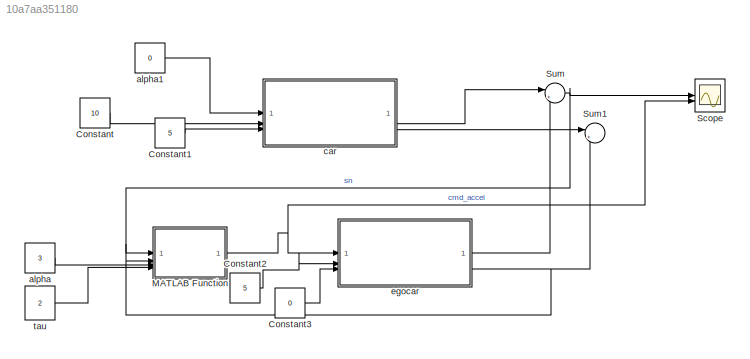
MODEL slx_10a7aa351180
KIND model
CONFIG AbsTol = auto
CONFIG EnableMultiTasking = off
CONFIG FixedStep = auto
CONFIG MaxStep = auto
CONFIG MinStep = auto
CONFIG RelTol = 1e-3
CONFIG SampleTimeConstraint = Unconstrained
CONFIG SolverName = VariableStepAuto
CONFIG StartTime = 0.0
CONFIG StopTime = 10.0
BLOCK [Constant] Constant
  Value = 10
BLOCK [Constant] Constant1
  Value = 5
BLOCK [Constant] Constant2
  Value = 5
BLOCK [Constant] Constant3
  Value = 0
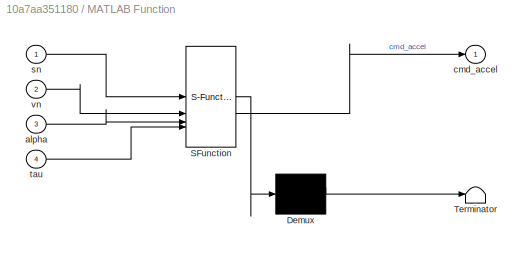
BLOCK [SubSystem] MATLAB Function
  ErrorFcn = Stateflow.Translate.translate
  PermitHierarchicalResolution = ExplicitOnly
  SFBlockType = MATLAB Function
  TreatAsAtomicUnit = on
BLOCK [Demux] MATLAB Function/ Demux 
  Outputs = 1
BLOCK [S-Function] MATLAB Function/ SFunction 
  EnableBusSupport = off
  FunctionName = sf_sfun
  PortCounts = [4 2]
  SFcnIsStateOwnerBlock = off
  SFunctionDeploymentMode = off
  Tag = Stateflow S-Function 2
BLOCK [Terminator] MATLAB Function/ Terminator 
BLOCK [Inport] MATLAB Function/alpha
  Port = 3
BLOCK [Outport] MATLAB Function/cmd_accel
BLOCK [Inport] MATLAB Function/sn
BLOCK [Inport] MATLAB Function/tau
  Port = 4
BLOCK [Inport] MATLAB Function/vn
  Port = 2
BLOCK [Scope] Scope
  ActiveDisplayYMaximum = 25.87177091771623
  ActiveDisplayYMinimum = -33.674641213079582
  Floating = off
  GraphicalSettings = {"Style":{"BackgroundColor":[0.12941176470588237,0.12941176470588237,0.12941176470588237],"AxesColor":[0.07058823529411765,0.07058823529411765,0.07058823529411765],"LabelsColor":[0.8509803921568627,0.8509803921568627,0.8509803921568627],"PreserveColors":false,"Visible":[true,true],"LineStyle":["-","-"],"LineWidth":[1.5,1.5],"BarWidth":[0.9,0.9],"LineColor":["auto","auto"],"LineFaceAlpha":[1,1],"Li...<+2101ch>
  MultipleDisplayCache = [{"MaxYLimMag":33.674641213079582,"MaxYLimReal":25.87177091771623,"MinYLimMag":0,"MinYLimReal":-33.674641213079582,"PlotAsMagnitudePhase":false,"ShowGrid":true,"ShowLegend":true,"Title":"%<SignalLabel>","YLabel":""}]
  NumInputPorts = 2
  ScopeFrameLocation = window
  ShowLegend = on
  WasSavedAsWebScope = on
  WindowPosition = [75.000000,96.000000,1129.000000,924.000000,]
BLOCK [Sum] Sum
  Inputs = |+-
BLOCK [Sum] Sum1
  Inputs = |+-
BLOCK [Constant] alpha
  Value = 3
BLOCK [Constant] alpha1
  Value = 0
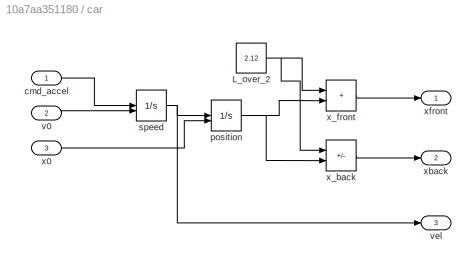
BLOCK [SubSystem] car
BLOCK [Constant] car/L_over_2
  Value = 2.12
BLOCK [Inport] car/cmd_accel
BLOCK [Integrator] car/position
  InitialConditionSource = external
BLOCK [Integrator] car/speed
  InitialConditionSource = external
BLOCK [Inport] car/v0
  Port = 2
BLOCK [Outport] car/vel
  Port = 3
BLOCK [Inport] car/x0
  Port = 3
BLOCK [Sum] car/x_back
  IconShape = rectangular
  Inputs = -+
BLOCK [Sum] car/x_front
  IconShape = rectangular
BLOCK [Outport] car/xback
  Port = 2
BLOCK [Outport] car/xfront
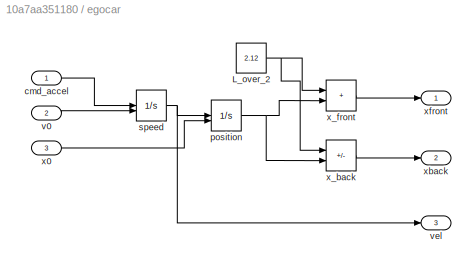
BLOCK [SubSystem] egocar
BLOCK [Constant] egocar/L_over_2
  Value = 2.12
BLOCK [Inport] egocar/cmd_accel
BLOCK [Integrator] egocar/position
  InitialConditionSource = external
BLOCK [Integrator] egocar/speed
  InitialConditionSource = external
BLOCK [Inport] egocar/v0
  Port = 2
BLOCK [Outport] egocar/vel
  Port = 3
BLOCK [Inport] egocar/x0
  Port = 3
BLOCK [Sum] egocar/x_back
  IconShape = rectangular
  Inputs = -+
BLOCK [Sum] egocar/x_front
  IconShape = rectangular
BLOCK [Outport] egocar/xback
  Port = 2
BLOCK [Outport] egocar/xfront
BLOCK [Constant] tau
  Value = 2
LINE Constant1:1 -> car:3
LINE Constant2:1 -> egocar:2
LINE Constant3:1 -> egocar:3
LINE Constant:1 -> car:2
NET MATLAB Function:1 -> Scope:2, egocar:1
NET Sum:1 -> MATLAB Function:1, Scope:1
LINE alpha1:1 -> car:1
LINE alpha:1 -> MATLAB Function:3
NET car/L_over_2:1 -> car/x_back:1, car/x_front:1
LINE car/cmd_accel:1 -> car/speed:1
NET car/position:1 -> car/x_back:2, car/x_front:2
NET car/speed:1 -> car/position:1, car/vel:1
LINE car/v0:1 -> car/speed:2
LINE car/x0:1 -> car/position:2
LINE car/x_back:1 -> car/xback:1
LINE car/x_front:1 -> car/xfront:1
LINE car:2 -> Sum:1
LINE car:3 -> Sum1:1
NET egocar/L_over_2:1 -> egocar/x_back:1, egocar/x_front:1
LINE egocar/cmd_accel:1 -> egocar/speed:1
NET egocar/position:1 -> egocar/x_back:2, egocar/x_front:2
NET egocar/speed:1 -> egocar/position:1, egocar/vel:1
LINE egocar/v0:1 -> egocar/speed:2
LINE egocar/x0:1 -> egocar/position:2
LINE egocar/x_back:1 -> egocar/xback:1
LINE egocar/x_front:1 -> egocar/xfront:1
LINE egocar:1 -> Sum:2
NET egocar:3 -> MATLAB Function:2, Sum1:2
LINE tau:1 -> MATLAB Function:4
note: NET lines group one-source signal fan-out (src -> all destinations, sorted); 1:1 wires keep LINE
CHART MATLAB Function states=1 transitions=1
  STATE_LABEL 'eML_blk_kernel()'
  STATE_LABEL 'SCRIPT:\nfunction cmd_accel = fcn(sn,vn, alpha, tau)\n\ncmd_accel = alpha * ( sn - tau * vn);\n'
CHART  states=0 transitions=0
